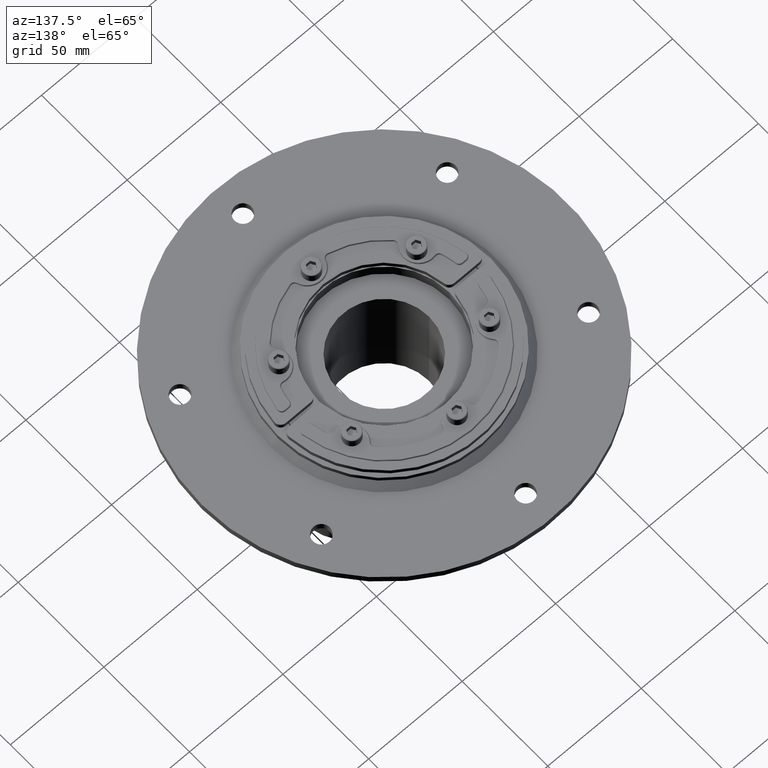
[diagram: clean part render]
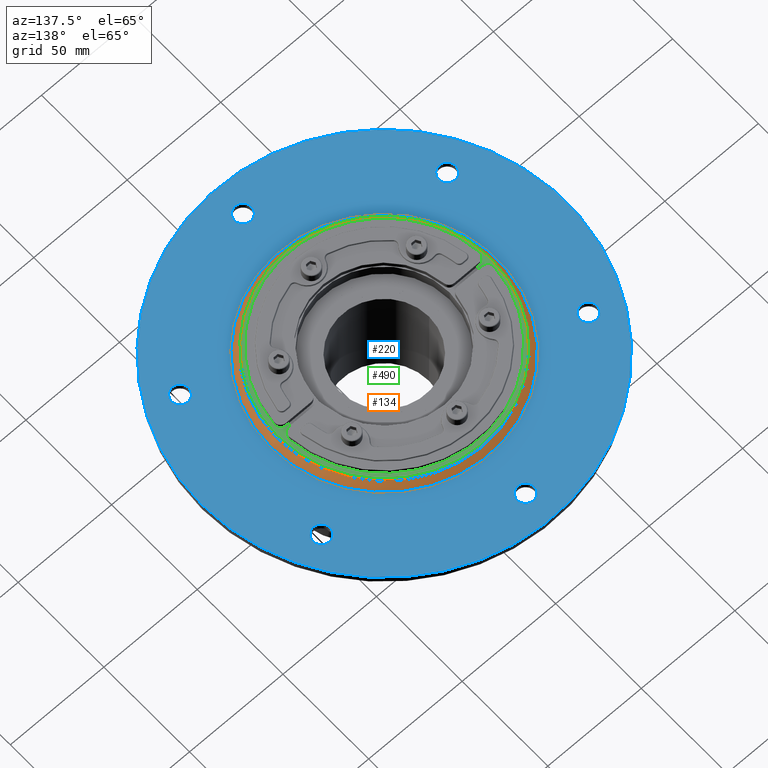
[diagram: same view with three faces highlighted in distinct colors, each labeled with its STEP entity id]
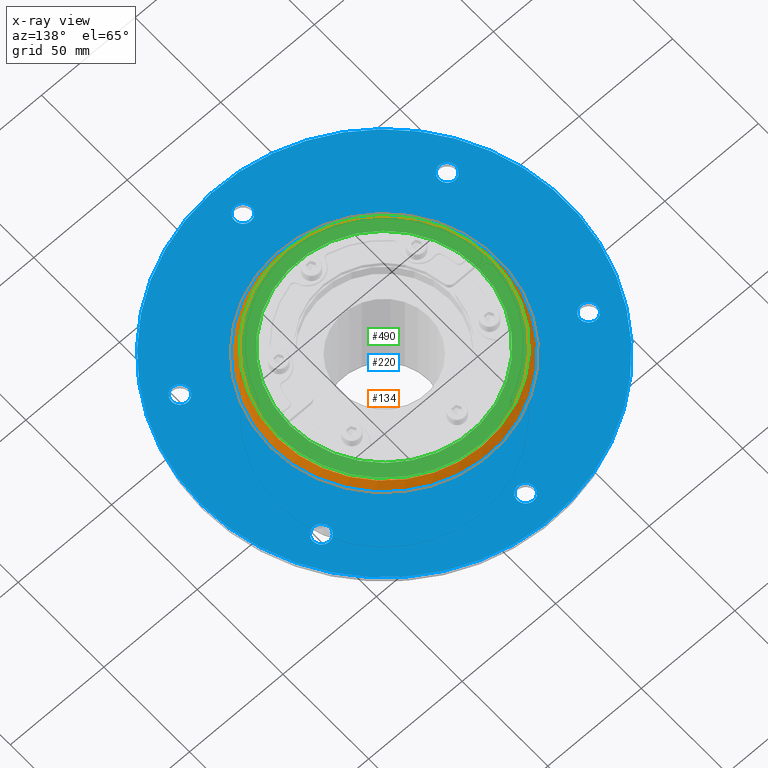
[diagram: x-ray of the same camera — body ghosted, the three highlighted faces saturated]
A machine part, auxiliary view with three faces highlighted in distinct colors.
The next image is the same camera in x-ray (body ghosted, the three faces saturated) — at least one of them is partly hidden behind the body in this view.
Their STEP definitions:

[orange] entity #134 — the highlighted conical surface has half-angle 45 deg.
#107=CARTESIAN_POINT('',(0.0,0.0,-4.250000000000003));
#108=DIRECTION('',(0.0,0.0,-1.0));
#109=DIRECTION('',(-1.0,0.0,0.0));
#110=AXIS2_PLACEMENT_3D('',#107,#108,#109);
#111=CONICAL_SURFACE('',#110,58.75,44.999999999999964);
#112=CARTESIAN_POINT('',(60.5,7.409113E-015,-6.000000000000004));
#113=VERTEX_POINT('',#112);
#114=CARTESIAN_POINT('',(0.0,0.0,-6.000000000000004));
#115=DIRECTION('',(0.0,0.0,1.0));
#116=DIRECTION('',(-1.0,0.0,0.0));
#117=AXIS2_PLACEMENT_3D('',#114,#115,#116);
#118=CIRCLE('',#117,60.5);
#119=EDGE_CURVE('',#113,#113,#118,.T.);
#120=ORIENTED_EDGE('',*,*,#119,.T.);
#121=EDGE_LOOP('',(#120));
#122=FACE_OUTER_BOUND('',#121,.T.);
#123=CARTESIAN_POINT('',(57.0,-6.980487E-015,-2.500000000000003));
#124=VERTEX_POINT('',#123);
#125=CARTESIAN_POINT('',(0.0,0.0,-2.500000000000003));
#126=DIRECTION('',(0.0,0.0,-1.0));
#127=DIRECTION('',(-1.0,0.0,0.0));
#128=AXIS2_PLACEMENT_3D('',#125,#126,#127);
#129=CIRCLE('',#128,57.0);
#130=EDGE_CURVE('',#124,#124,#129,.T.);
#131=ORIENTED_EDGE('',*,*,#130,.T.);
#132=EDGE_LOOP('',(#131));
#133=FACE_BOUND('',#132,.T.);
#134=ADVANCED_FACE('',(#122,#133),#111,.T.);

[blue] entity #220 — the highlighted planar face has unit normal (0, 0, 1).
#112=CARTESIAN_POINT('',(60.5,7.409113E-015,-6.000000000000004));
#113=VERTEX_POINT('',#112);
#114=CARTESIAN_POINT('',(0.0,0.0,-6.000000000000004));
#115=DIRECTION('',(0.0,0.0,1.0));
#116=DIRECTION('',(-1.0,0.0,0.0));
#117=AXIS2_PLACEMENT_3D('',#114,#115,#116);
#118=CIRCLE('',#117,60.5);
#119=EDGE_CURVE('',#113,#113,#118,.T.);
#135=CARTESIAN_POINT('',(-5.853437E-015,-2.429206E-015,-6.000000000000004));
#136=DIRECTION('',(0.0,0.0,1.0));
#137=DIRECTION('',(1.0,0.0,0.0));
#138=AXIS2_PLACEMENT_3D('',#135,#136,#137);
#139=PLANE('',#138);
#140=CARTESIAN_POINT('',(97.5,1.194031E-014,-6.000000000000001));
#141=VERTEX_POINT('',#140);
#142=CARTESIAN_POINT('',(0.0,0.0,-6.000000000000001));
#143=DIRECTION('',(0.0,0.0,1.0));
#144=DIRECTION('',(-1.0,0.0,0.0));
#145=AXIS2_PLACEMENT_3D('',#142,#143,#144);
#146=CIRCLE('',#145,97.5);
#147=EDGE_CURVE('',#141,#141,#146,.T.);
#148=ORIENTED_EDGE('',*,*,#147,.T.);
#149=EDGE_LOOP('',(#148));
#150=FACE_OUTER_BOUND('',#149,.T.);
#151=CARTESIAN_POINT('',(4.5,82.5,-6.000000000000004));
#152=VERTEX_POINT('',#151);
#153=CARTESIAN_POINT('',(0.0,82.5,-6.000000000000014));
#154=DIRECTION('',(0.0,0.0,-1.0));
#155=DIRECTION('',(1.0,0.0,0.0));
#156=AXIS2_PLACEMENT_3D('',#153,#154,#155);
#157=CIRCLE('',#156,4.5);
#158=EDGE_CURVE('',#152,#152,#157,.T.);
#159=ORIENTED_EDGE('',*,*,#158,.T.);
#160=EDGE_LOOP('',(#159));
#161=FACE_BOUND('',#160,.T.);
#162=CARTESIAN_POINT('',(-69.19709581221619,45.147114317029981,-6.000000000000004));
#163=VERTEX_POINT('',#162);
#164=CARTESIAN_POINT('',(-71.447095812216176,41.250000000000007,-6.000000000000014));
#165=DIRECTION('',(0.0,0.0,-1.0));
#166=DIRECTION('',(0.5,0.866025403784439,0.0));
#167=AXIS2_PLACEMENT_3D('',#164,#165,#166);
#168=CIRCLE('',#167,4.5);
#169=EDGE_CURVE('',#163,#163,#168,.T.);
#170=ORIENTED_EDGE('',*,*,#169,.T.);
#171=EDGE_LOOP('',(#170));
#172=FACE_BOUND('',#171,.T.);
#173=CARTESIAN_POINT('',(-73.697095812216205,-37.352885682970012,-6.000000000000004));
#174=VERTEX_POINT('',#173);
#175=CARTESIAN_POINT('',(-71.447095812216205,-41.249999999999986,-6.000000000000014));
#176=DIRECTION('',(0.0,0.0,-1.0));
#177=DIRECTION('',(-0.5,0.866025403784439,0.0));
#178=AXIS2_PLACEMENT_3D('',#175,#176,#177);
#179=CIRCLE('',#178,4.5);
#180=EDGE_CURVE('',#174,#174,#179,.T.);
#181=ORIENTED_EDGE('',*,*,#180,.T.);
#182=EDGE_LOOP('',(#181));
#183=FACE_BOUND('',#182,.T.);
#184=CARTESIAN_POINT('',(-4.500000000000011,-82.5,-6.000000000000004));
#185=VERTEX_POINT('',#184);
#186=CARTESIAN_POINT('',(-1.332268E-014,-82.5,-6.000000000000014));
#187=DIRECTION('',(0.0,0.0,-1.0));
#188=DIRECTION('',(-1.0,0.0,0.0));
#189=AXIS2_PLACEMENT_3D('',#186,#187,#188);
#190=CIRCLE('',#189,4.500000000000001);
#191=EDGE_CURVE('',#185,#185,#190,.T.);
#192=ORIENTED_EDGE('',*,*,#191,.T.);
#193=EDGE_LOOP('',(#192));
#194=FACE_BOUND('',#193,.T.);
#195=CARTESIAN_POINT('',(69.197095812216162,-45.147114317030002,-6.000000000000004));
#196=VERTEX_POINT('',#195);
#197=CARTESIAN_POINT('',(71.447095812216162,-41.250000000000036,-6.000000000000014));
#198=DIRECTION('',(0.0,0.0,-1.0));
#199=DIRECTION('',(-0.5,-0.866025403784438,0.0));
#200=AXIS2_PLACEMENT_3D('',#197,#198,#199);
#201=CIRCLE('',#200,4.5);
#202=EDGE_CURVE('',#196,#196,#201,.T.);
#203=ORIENTED_EDGE('',*,*,#202,.T.);
#204=EDGE_LOOP('',(#203));
#205=FACE_BOUND('',#204,.T.);
#206=CARTESIAN_POINT('',(73.697095812216219,37.352885682969962,-6.000000000000004));
#207=VERTEX_POINT('',#206);
#208=CARTESIAN_POINT('',(71.447095812216219,41.249999999999943,-6.000000000000014));
#209=DIRECTION('',(0.0,0.0,-1.0));
#210=DIRECTION('',(0.499999999999999,-0.866025403784439,0.0));
#211=AXIS2_PLACEMENT_3D('',#208,#209,#210);
#212=CIRCLE('',#211,4.5);
#213=EDGE_CURVE('',#207,#207,#212,.T.);
#214=ORIENTED_EDGE('',*,*,#213,.T.);
#215=EDGE_LOOP('',(#214));
#216=FACE_BOUND('',#215,.T.);
#217=ORIENTED_EDGE('',*,*,#119,.F.);
#218=EDGE_LOOP('',(#217));
#219=FACE_BOUND('',#218,.T.);
#220=ADVANCED_FACE('',(#150,#161,#172,#183,#194,#205,#216,#219),#139,.T.);

[green] entity #490 — the highlighted planar face has unit normal (0, 0, 1).
#226=CARTESIAN_POINT('',(57.0,6.980487E-015,0.0));
#227=VERTEX_POINT('',#226);
#228=CARTESIAN_POINT('',(0.0,0.0,0.0));
#229=DIRECTION('',(0.0,0.0,-1.0));
#230=DIRECTION('',(-1.0,0.0,0.0));
#231=AXIS2_PLACEMENT_3D('',#228,#229,#230);
#232=CIRCLE('',#231,57.0);
#233=EDGE_CURVE('',#227,#227,#232,.T.);
#435=CARTESIAN_POINT('',(50.500000000000007,0.0,0.0));
#436=VERTEX_POINT('',#435);
#437=CARTESIAN_POINT('',(0.0,0.0,0.0));
#438=DIRECTION('',(0.0,0.0,-1.0));
#439=DIRECTION('',(1.0,0.0,0.0));
#440=AXIS2_PLACEMENT_3D('',#437,#438,#439);
#441=CIRCLE('',#440,50.500000000000007);
#442=EDGE_CURVE('',#436,#436,#441,.T.);
#479=CARTESIAN_POINT('',(-5.817072E-016,0.0,0.0));
#480=DIRECTION('',(0.0,0.0,1.0));
#481=DIRECTION('',(1.0,0.0,0.0));
#482=AXIS2_PLACEMENT_3D('',#479,#480,#481);
#483=PLANE('',#482);
#484=ORIENTED_EDGE('',*,*,#233,.F.);
#485=EDGE_LOOP('',(#484));
#486=FACE_OUTER_BOUND('',#485,.T.);
#487=ORIENTED_EDGE('',*,*,#442,.T.);
#488=EDGE_LOOP('',(#487));
#489=FACE_BOUND('',#488,.T.);
#490=ADVANCED_FACE('',(#486,#489),#483,.T.);